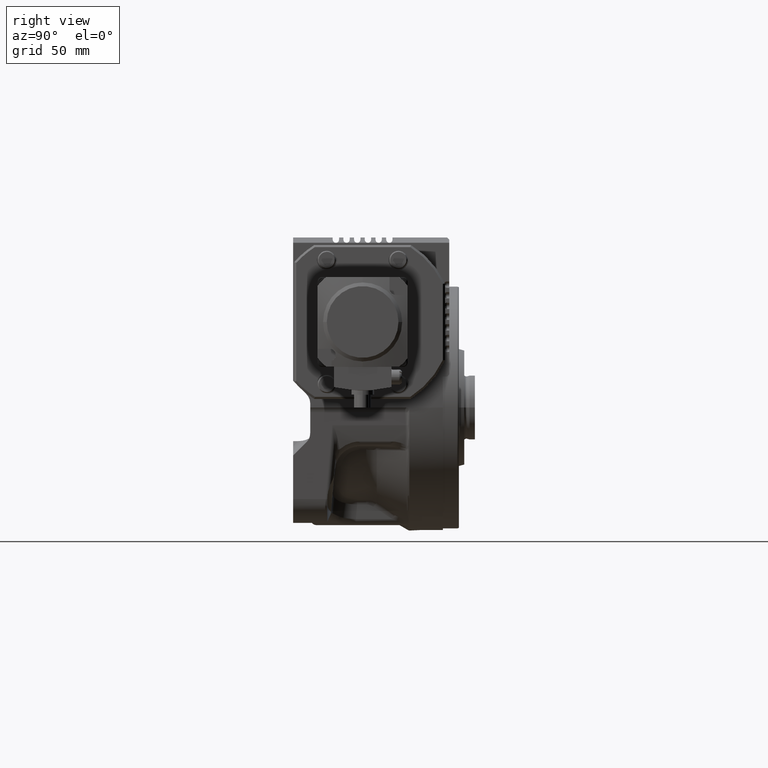
[diagram: clean part render]
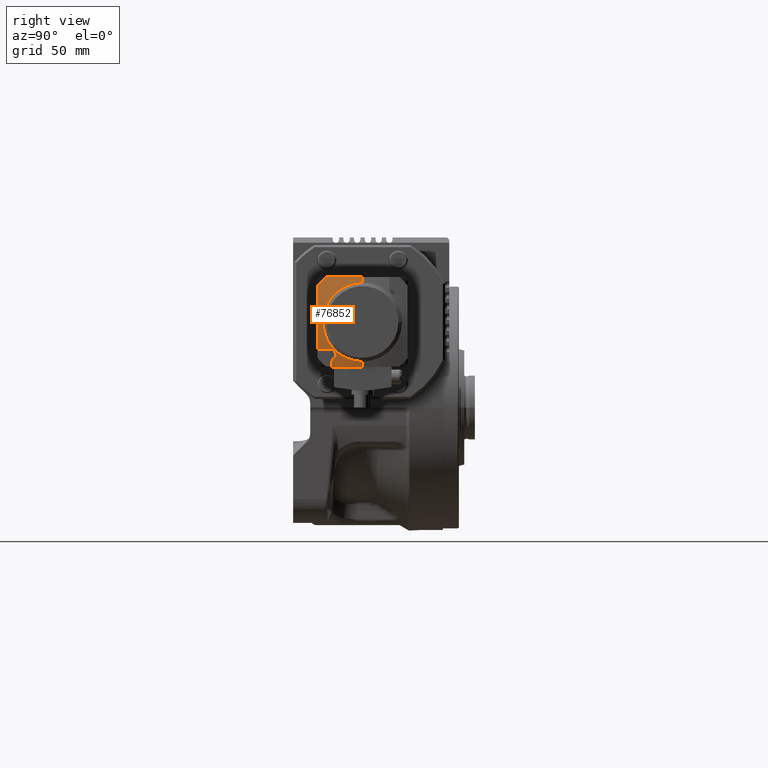
[diagram: same view with one face highlighted and labeled with its STEP entity id]
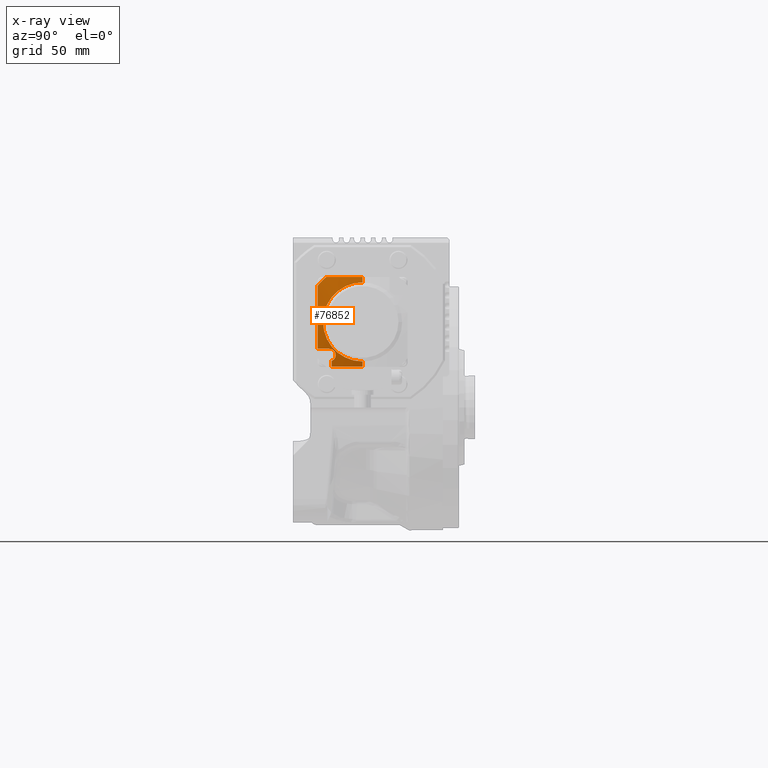
[diagram: x-ray of the same camera — body ghosted, the highlighted face saturated]
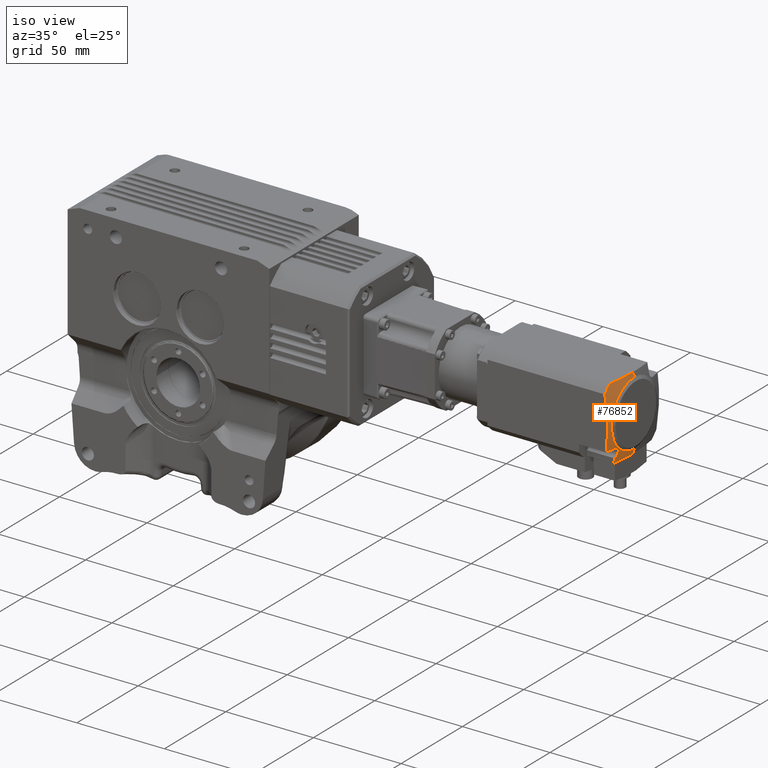
[diagram: same view with one face highlighted and labeled with its STEP entity id]
A machine part, right view. The second image highlights one B-rep face of the part: STEP entity #76852.
The next image is the same camera in x-ray: the body ghosted, the highlighted face saturated — about 0% of this face is hidden behind the body in this view.
A second angle (iso view) of the same face is appended — the face is thin or edge-on in the first view.
In plain terms, the highlighted face is a freeform B-spline surface patch.
Its self-contained STEP definition (entity closure, byte-faithful):
#107 = CARTESIAN_POINT ( 'NONE',  ( -8.673617379884033894E-15, 7.105630474570760136, 71.47727409456513215 ) ) ;
#515 = CARTESIAN_POINT ( 'NONE',  ( -14.56927532636426292, -12.74684393968879803, 68.83133591860281797 ) ) ;
#698 = EDGE_LOOP ( 'NONE', ( #46599, #48119, #8669, #8590, #11866, #39349, #73505, #32339, #44521, #10812, #47072, #62199 ) ) ;
#835 = CIRCLE ( 'NONE', #77341, 97.77013859047141864 ) ;
#1294 = CARTESIAN_POINT ( 'NONE',  ( -14.49630997119562181, -7.105630474570801880, 70.69361749892148339 ) ) ;
#1697 = CARTESIAN_POINT ( 'NONE',  ( -7.054017905791771348, 21.00000000000002487, 68.49290929524541127 ) ) ;
#2088 = VERTEX_POINT ( 'NONE', #67536 ) ;
#2419 = DIRECTION ( 'NONE',  ( -1.169351221611225607E-16, 0.000000000000000000, 1.000000000000000000 ) ) ;
#2812 = CARTESIAN_POINT ( 'NONE',  ( -21.00000000000001066, -12.59999999999396003, 67.67760555069656903 ) ) ;
#2852 = CARTESIAN_POINT ( 'NONE',  ( -14.49999999999984723, -20.07672609405233999, 67.61223202626878503 ) ) ;
#3216 = DIRECTION ( 'NONE',  ( -1.000000000000000000, 2.220446049250314067E-16, 0.000000000000000000 ) ) ;
#3561 = CIRCLE ( 'NONE', #62198, 100.0000000000000000 ) ;
#4233 = CARTESIAN_POINT ( 'NONE',  ( -14.49999999999954170, -18.22213151776878703, 67.97349781233408805 ) ) ;
#5048 = VERTEX_POINT ( 'NONE', #36242 ) ;
#5247 = EDGE_CURVE ( 'NONE', #11625, #70301, #62001, .T. ) ;
#6415 = VERTEX_POINT ( 'NONE', #23016 ) ;
#6495 = CARTESIAN_POINT ( 'NONE',  ( 0.000000000000000000, -21.00000000000006040, 68.49290929524541127 ) ) ;
#6636 = VERTEX_POINT ( 'NONE', #22138 ) ;
#6704 = CIRCLE ( 'NONE', #42386, 27.00000000000000000 ) ;
#6965 = B_SPLINE_CURVE_WITH_KNOTS ( 'NONE', 3,
 ( #68374, #30864, #43621, #55202, #515, #60801, #67977, #66816, #25285, #36844, #18886, #13691, #74374, #37237, #43230, #13304, #55606, #37639 ),
 .UNSPECIFIED., .F., .F.,
 ( 4, 2, 2, 2, 2, 2, 2, 2, 4 ),
 ( -0.004549268411042564977, -0.003980609859662243705, -0.003411951308281921565, -0.002843292756901599858, -0.002274634205521278152, -0.001705975654140956446, -0.001137317102760634739, -0.0005686585513803125991, 8.673617379884035472E-18 ),
 .UNSPECIFIED. ) ;
#7468 = DIRECTION ( 'NONE',  ( -1.000000000000000000, 2.220446049250314067E-16, 0.000000000000000000 ) ) ;
#7658 = DIRECTION ( 'NONE',  ( -1.000000000000000000, 1.532107773982714764E-14, 0.000000000000000000 ) ) ;
#8310 = CARTESIAN_POINT ( 'NONE',  ( -18.48205080756889629, 3.185941528539989861E-14, 68.99999999999990052 ) ) ;
#8406 = CARTESIAN_POINT ( 'NONE',  ( 6.938893903907228378E-15, -21.00000000000002132, -29.27722929522606776 ) ) ;
#8444 = CARTESIAN_POINT ( 'NONE',  ( -14.49999999999968914, -19.15076993331233624, 67.79949632315472741 ) ) ;
#8590 = ORIENTED_EDGE ( 'NONE', *, *, #70295, .T. ) ;
#8669 = ORIENTED_EDGE ( 'NONE', *, *, #76828, .T. ) ;
#9024 = CARTESIAN_POINT ( 'NONE',  ( -13.03876510303142489, -17.04073369344973798, 68.39378272856326646 ) ) ;
#9424 = CARTESIAN_POINT ( 'NONE',  ( -13.50356624185036303, -17.60848638134476474, 68.22978302722675892 ) ) ;
#9467 = VERTEX_POINT ( 'NONE', #56316 ) ;
#10812 = ORIENTED_EDGE ( 'NONE', *, *, #72056, .F. ) ;
#10856 = VERTEX_POINT ( 'NONE', #8310 ) ;
#11528 =( BOUNDED_SURFACE ( )  B_SPLINE_SURFACE ( 3, 3, ( 
 ( #42445, #19672, #1697, #49228 ),
 ( #42835, #54799, #56374, #107 ),
 ( #13688, #1294, #60798, #50008 ),
 ( #25282, #67198, #24492, #6495 ) ),
 .UNSPECIFIED., .F., .F., .F. ) 
 B_SPLINE_SURFACE_WITH_KNOTS ( ( 4, 4 ),
 ( 4, 4 ),
 ( 0.000000000000000000, 1.000000000000000000 ),
 ( 0.000000000000000000, 1.000000000000000000 ),
 .UNSPECIFIED. ) 
 GEOMETRIC_REPRESENTATION_ITEM ( )  RATIONAL_B_SPLINE_SURFACE ( (
 ( 1.000000000000000000, 0.9961148475324822504, 0.9961148475324822504, 1.000000000000000000),
 ( 0.9851342572698096323, 0.9813068604793415695, 0.9813068604793415695, 0.9851342572698096323),
 ( 0.9851342572698096323, 0.9813068604793415695, 0.9813068604793415695, 0.9851342572698096323),
 ( 1.000000000000000000, 0.9961148475324822504, 0.9961148475324822504, 1.000000000000000000) ) ) 
 REPRESENTATION_ITEM ( '' )  SURFACE ( )  );
#11625 = VERTEX_POINT ( 'NONE', #33693 ) ;
#11866 = ORIENTED_EDGE ( 'NONE', *, *, #29006, .T. ) ;
#12892 = DIRECTION ( 'NONE',  ( -1.169351221611225854E-16, 1.338780126066746587E-16, 1.000000000000000000 ) ) ;
#13218 = B_SPLINE_CURVE_WITH_KNOTS ( 'NONE', 3,
 ( #33147, #45154, #55258, #61230, #2812 ),
 .UNSPECIFIED., .F., .F.,
 ( 4, 1, 4 ),
 ( 0.000000000000000000, 0.01478906249748753246, 0.02957812499497506492 ),
 .UNSPECIFIED. ) ;
#13304 = CARTESIAN_POINT ( 'NONE',  ( -12.61848804998359697, -15.12186959421259402, 68.76428981999414702 ) ) ;
#13486 = CIRCLE ( 'NONE', #17303, 100.0000000000000000 ) ;
#13688 = CARTESIAN_POINT ( 'NONE',  ( -21.59668569492146517, -7.105630474570802768, 69.13543818370281713 ) ) ;
#13691 = CARTESIAN_POINT ( 'NONE',  ( -12.98238202610449399, -14.04799418170890846, 68.87646858315308407 ) ) ;
#15848 = CARTESIAN_POINT ( 'NONE',  ( -12.59999999999315889, -15.79975623410499352, 68.65999450244940761 ) ) ;
#16219 = CIRCLE ( 'NONE', #39155, 97.77013859047140443 ) ;
#17303 = AXIS2_PLACEMENT_3D ( 'NONE', #26311, #51418, #44642 ) ;
#17936 = AXIS2_PLACEMENT_3D ( 'NONE', #68566, #61778, #7468 ) ;
#18886 = CARTESIAN_POINT ( 'NONE',  ( -13.19533064900343078, -13.72934465764535261, 68.89315898523371118 ) ) ;
#19672 = CARTESIAN_POINT ( 'NONE',  ( -14.06692690897463827, 21.00000000000002132, 67.73246473559126457 ) ) ;
#20089 = EDGE_CURVE ( 'NONE', #10856, #9467, #23174, .T. ) ;
#20923 = EDGE_CURVE ( 'NONE', #2088, #70301, #51246, .T. ) ;
#21427 = CARTESIAN_POINT ( 'NONE',  ( -12.77901961750283100, -16.51398579200332506, 68.51851548838436656 ) ) ;
#21529 = DIRECTION ( 'NONE',  ( -1.169351221611225607E-16, 0.000000000000000000, 1.000000000000000000 ) ) ;
#22138 = CARTESIAN_POINT ( 'NONE',  ( 1.490221005174028042E-14, 20.99999999999997868, 68.49290929524546812 ) ) ;
#22390 = CARTESIAN_POINT ( 'NONE',  ( -6.938893903907228378E-15, 2.775557561562891351E-14, 68.99999999999990052 ) ) ;
#23016 = CARTESIAN_POINT ( 'NONE',  ( -21.00000000000004263, 16.97056274847715684, 67.00880292129008353 ) ) ;
#23174 = CIRCLE ( 'NONE', #17936, 18.48205080756889274 ) ;
#24492 = CARTESIAN_POINT ( 'NONE',  ( -7.054017905791767795, -21.00000000000006395, 68.49290929524541127 ) ) ;
#24644 = CARTESIAN_POINT ( 'NONE',  ( 3.469446951953614189E-15, -12.59999999999396714, -29.27722929522606776 ) ) ;
#25279 = CARTESIAN_POINT ( 'NONE',  ( -3.469446951953614189E-15, 21.00000000000000355, -29.27722929522603934 ) ) ;
#25282 = CARTESIAN_POINT ( 'NONE',  ( -20.95698834739400951, -21.00000000000006395, 66.22043894545504372 ) ) ;
#25285 = CARTESIAN_POINT ( 'NONE',  ( -13.58451757057324549, -13.31437141417669778, 68.89722991628686088 ) ) ;
#26073 = CARTESIAN_POINT ( 'NONE',  ( -6.938893903907228378E-15, 1.387778780781445676E-14, 67.00880292129008353 ) ) ;
#26311 = CARTESIAN_POINT ( 'NONE',  ( 3.469446951953614189E-15, 3.469446951953614189E-15, -29.27722929522605355 ) ) ;
#26801 = DIRECTION ( 'NONE',  ( -2.220446049250313081E-16, 1.000000000000000000, 2.726558906848190043E-16 ) ) ;
#27606 = VERTEX_POINT ( 'NONE', #35563 ) ;
#28208 = CARTESIAN_POINT ( 'NONE',  ( -13.20688074008904245, -17.28133140993243444, 68.32889999895019173 ) ) ;
#28434 = DIRECTION ( 'NONE',  ( -2.220446049250313081E-16, 1.000000000000000000, 2.775557561562891351E-16 ) ) ;
#29006 = EDGE_CURVE ( 'NONE', #77628, #57553, #41128, .T. ) ;
#29870 = CIRCLE ( 'NONE', #74491, 18.48205080756889274 ) ;
#30117 = VERTEX_POINT ( 'NONE', #62511 ) ;
#30226 = DIRECTION ( 'NONE',  ( -1.169351221611225607E-16, 0.000000000000000000, 1.000000000000000000 ) ) ;
#30864 = CARTESIAN_POINT ( 'NONE',  ( -15.31004600460809684, -12.59999999999534737, 68.73746081175121958 ) ) ;
#32339 = ORIENTED_EDGE ( 'NONE', *, *, #20923, .F. ) ;
#32988 = CARTESIAN_POINT ( 'NONE',  ( -12.64539004436695357, -16.09059945340552744, 68.60677239796265781 ) ) ;
#33147 = CARTESIAN_POINT ( 'NONE',  ( -21.00000000000004263, 16.97056274847715684, 67.00880292129008353 ) ) ;
#33384 = CARTESIAN_POINT ( 'NONE',  ( -12.59999999999315534, -15.49999999999999112, 68.70741235845429173 ) ) ;
#33693 = CARTESIAN_POINT ( 'NONE',  ( -12.59999999999315534, -15.49999999999999112, 68.70741235845429173 ) ) ;
#35563 = CARTESIAN_POINT ( 'NONE',  ( 1.496150676524758184E-14, -18.48205080756921603, 68.99999999999990052 ) ) ;
#36242 = CARTESIAN_POINT ( 'NONE',  ( -16.97056274847716395, 21.00000000000000355, 67.00880292129008353 ) ) ;
#36844 = CARTESIAN_POINT ( 'NONE',  ( -13.31591285760383947, -13.58276015923112645, 68.89726401377134835 ) ) ;
#37237 = CARTESIAN_POINT ( 'NONE',  ( -12.74806966014877574, -14.56586550154206883, 68.83168096047667461 ) ) ;
#37377 = DIRECTION ( 'NONE',  ( -2.220446049250313081E-16, 1.000000000000000000, 2.726558906848190043E-16 ) ) ;
#37639 = CARTESIAN_POINT ( 'NONE',  ( -12.59999999999315534, -15.49999999999999112, 68.70741235845429173 ) ) ;
#39155 = AXIS2_PLACEMENT_3D ( 'NONE', #8406, #26801, #2419 ) ;
#39349 = ORIENTED_EDGE ( 'NONE', *, *, #66739, .T. ) ;
#39382 = CARTESIAN_POINT ( 'NONE',  ( -12.83462092503146934, -16.65205396449930930, 68.48781582441976923 ) ) ;
#40182 = CARTESIAN_POINT ( 'NONE',  ( -13.61203973685581481, -17.70612499811013052, 68.19701323908745394 ) ) ;
#41128 = CIRCLE ( 'NONE', #51326, 99.20302414745296460 ) ;
#42386 = AXIS2_PLACEMENT_3D ( 'NONE', #26073, #12892, #7658 ) ;
#42445 = CARTESIAN_POINT ( 'NONE',  ( -20.95698834739401661, 21.00000000000001776, 66.22043894545504372 ) ) ;
#42835 = CARTESIAN_POINT ( 'NONE',  ( -21.59668569492146872, 7.105630474570756583, 69.13543818370280292 ) ) ;
#43230 = CARTESIAN_POINT ( 'NONE',  ( -12.69244797435570860, -14.74917022890097584, 68.81150804545548283 ) ) ;
#43305 = EDGE_CURVE ( 'NONE', #6636, #9467, #13486, .T. ) ;
#43621 = CARTESIAN_POINT ( 'NONE',  ( -15.12275585151718360, -12.61848473738359999, 68.76415018587033501 ) ) ;
#44521 = ORIENTED_EDGE ( 'NONE', *, *, #44634, .T. ) ;
#44634 = EDGE_CURVE ( 'NONE', #2088, #30117, #16219, .T. ) ;
#44642 = DIRECTION ( 'NONE',  ( -2.220446049250313081E-16, 1.000000000000000000, 2.775557561562891351E-16 ) ) ;
#45154 = CARTESIAN_POINT ( 'NONE',  ( -21.00000000000007105, 12.05919280770125113, 67.87443950265317483 ) ) ;
#45493 = DIRECTION ( 'NONE',  ( 2.220446049250313081E-16, -1.000000000000000000, -2.726558906848190043E-16 ) ) ;
#46599 = ORIENTED_EDGE ( 'NONE', *, *, #43305, .F. ) ;
#47072 = ORIENTED_EDGE ( 'NONE', *, *, #78237, .T. ) ;
#48119 = ORIENTED_EDGE ( 'NONE', *, *, #70753, .T. ) ;
#49228 = CARTESIAN_POINT ( 'NONE',  ( -6.938893903907228378E-15, 21.00000000000002132, 68.49290929524541127 ) ) ;
#50008 = CARTESIAN_POINT ( 'NONE',  ( -3.469446951953613794E-15, -7.105630474570798327, 71.47727409456514636 ) ) ;
#51246 = B_SPLINE_CURVE_WITH_KNOTS ( 'NONE', 3,
 ( #51568, #2852, #8444, #69934 ),
 .UNSPECIFIED., .F., .F.,
 ( 4, 4 ),
 ( 0.000000000000000000, 1.000000000000000000 ),
 .UNSPECIFIED. ) ;
#51326 = AXIS2_PLACEMENT_3D ( 'NONE', #24644, #37377, #30226 ) ;
#51418 = DIRECTION ( 'NONE',  ( 1.000000000000000000, -2.220446049250313081E-16, -1.169351221611224621E-16 ) ) ;
#51568 = CARTESIAN_POINT ( 'NONE',  ( -14.50000000000000178, -20.99999999999441869, 67.41170492167498196 ) ) ;
#51977 = DIRECTION ( 'NONE',  ( 1.000000000000000000, -2.220446049250313081E-16, -1.169351221611224621E-16 ) ) ;
#52543 = CARTESIAN_POINT ( 'NONE',  ( -14.22099123036464974, -18.11963508517059296, 68.03430281411135638 ) ) ;
#54799 = CARTESIAN_POINT ( 'NONE',  ( -14.49630997119562537, 7.105630474570758359, 70.69361749892146918 ) ) ;
#55202 = CARTESIAN_POINT ( 'NONE',  ( -14.75336425304949550, -12.69144549320597370, 68.81100367223213254 ) ) ;
#55258 = CARTESIAN_POINT ( 'NONE',  ( -20.99999999999990763, 2.219099634903434204, 68.83845104719786434 ) ) ;
#55606 = CARTESIAN_POINT ( 'NONE',  ( -12.59999999999315712, -15.31003010904505146, 68.73746332623974808 ) ) ;
#55654 = CARTESIAN_POINT ( 'NONE',  ( -14.49999999999954170, -18.22213151776878703, 67.97349781233408805 ) ) ;
#56316 = CARTESIAN_POINT ( 'NONE',  ( 1.496150676524741775E-14, 18.48205080756926222, 68.99999999999990052 ) ) ;
#56374 = CARTESIAN_POINT ( 'NONE',  ( -7.269336847089333808, 7.105630474570760136, 71.47727409456513215 ) ) ;
#57553 = VERTEX_POINT ( 'NONE', #77823 ) ;
#57919 = DIRECTION ( 'NONE',  ( 1.169351221611225854E-16, -1.338780126066746587E-16, -1.000000000000000000 ) ) ;
#58143 = CARTESIAN_POINT ( 'NONE',  ( -13.95926890894962646, -17.97420159949733787, 68.09913678980869634 ) ) ;
#60798 = CARTESIAN_POINT ( 'NONE',  ( -7.269336847089330256, -7.105630474570800104, 71.47727409456514636 ) ) ;
#60801 = CARTESIAN_POINT ( 'NONE',  ( -14.21793626979846437, -12.89185328207060621, 68.86392817428728108 ) ) ;
#61230 = CARTESIAN_POINT ( 'NONE',  ( -21.00000000000003908, -7.654515691279500267, 68.32030792225752691 ) ) ;
#61586 = FACE_OUTER_BOUND ( 'NONE', #698, .T. ) ;
#61778 = DIRECTION ( 'NONE',  ( 1.169351221611225854E-16, -1.338780126066746587E-16, -1.000000000000000000 ) ) ;
#62001 = B_SPLINE_CURVE_WITH_KNOTS ( 'NONE', 3,
 ( #33384, #15848, #32988, #21427, #39382, #75732, #9024, #28208, #64126, #9424, #40182, #58143, #52543, #4233 ),
 .UNSPECIFIED., .F., .F.,
 ( 4, 2, 2, 2, 2, 2, 4 ),
 ( 8.456776945386934585E-18, 0.0008972945396584099511, 0.001345941809487610861, 0.001794589079316811445, 0.002243236349146012464, 0.002691883618975213048, 0.003589178158633610748 ),
 .UNSPECIFIED. ) ;
#62198 = AXIS2_PLACEMENT_3D ( 'NONE', #70749, #51977, #28434 ) ;
#62199 = ORIENTED_EDGE ( 'NONE', *, *, #20089, .T. ) ;
#62511 = CARTESIAN_POINT ( 'NONE',  ( 1.490221005174088942E-14, -21.00000000000004974, 68.49290929524541127 ) ) ;
#64126 = CARTESIAN_POINT ( 'NONE',  ( -13.30124107493650598, -17.39655523527535053, 68.29561220154211298 ) ) ;
#66739 = EDGE_CURVE ( 'NONE', #57553, #11625, #6965, .T. ) ;
#66816 = CARTESIAN_POINT ( 'NONE',  ( -13.73445473762249947, -13.19153745340540773, 68.89295106417013415 ) ) ;
#67198 = CARTESIAN_POINT ( 'NONE',  ( -14.06692690897463116, -21.00000000000006750, 67.73246473559126457 ) ) ;
#67536 = CARTESIAN_POINT ( 'NONE',  ( -14.50000000000000178, -20.99999999999441869, 67.41170492167498196 ) ) ;
#67977 = CARTESIAN_POINT ( 'NONE',  ( -14.05096732641225898, -12.98078311505192950, 68.87625157036961809 ) ) ;
#68374 = CARTESIAN_POINT ( 'NONE',  ( -15.49999999999787015, -12.59999999999465103, 68.70741235845446226 ) ) ;
#68566 = CARTESIAN_POINT ( 'NONE',  ( -6.938893903907228378E-15, 2.775557561562891351E-14, 68.99999999999990052 ) ) ;
#69934 = CARTESIAN_POINT ( 'NONE',  ( -14.49999999999954170, -18.22213151776878703, 67.97349781233408805 ) ) ;
#70295 = EDGE_CURVE ( 'NONE', #6415, #77628, #13218, .T. ) ;
#70301 = VERTEX_POINT ( 'NONE', #55654 ) ;
#70749 = CARTESIAN_POINT ( 'NONE',  ( 3.469446951953614189E-15, 3.469446951953614189E-15, -29.27722929522605355 ) ) ;
#70753 = EDGE_CURVE ( 'NONE', #6636, #5048, #835, .T. ) ;
#72056 = EDGE_CURVE ( 'NONE', #27606, #30117, #3561, .T. ) ;
#73505 = ORIENTED_EDGE ( 'NONE', *, *, #5247, .T. ) ;
#73644 = CARTESIAN_POINT ( 'NONE',  ( -21.00000000000001066, -12.59999999999396003, 67.67760555069656903 ) ) ;
#74374 = CARTESIAN_POINT ( 'NONE',  ( -12.89260873069377134, -14.21655205584801607, 68.86402745845093420 ) ) ;
#74491 = AXIS2_PLACEMENT_3D ( 'NONE', #22390, #57919, #3216 ) ;
#75732 = CARTESIAN_POINT ( 'NONE',  ( -12.96433009430041494, -16.91486821991575695, 68.42556401735603799 ) ) ;
#76828 = EDGE_CURVE ( 'NONE', #5048, #6415, #6704, .T. ) ;
#76852 = ADVANCED_FACE ( 'NONE', ( #61586 ), #11528, .T. ) ;
#77341 = AXIS2_PLACEMENT_3D ( 'NONE', #25279, #45493, #21529 ) ;
#77628 = VERTEX_POINT ( 'NONE', #73644 ) ;
#77823 = CARTESIAN_POINT ( 'NONE',  ( -15.49999999999787015, -12.59999999999465103, 68.70741235845446226 ) ) ;
#78237 = EDGE_CURVE ( 'NONE', #27606, #10856, #29870, .T. ) ;